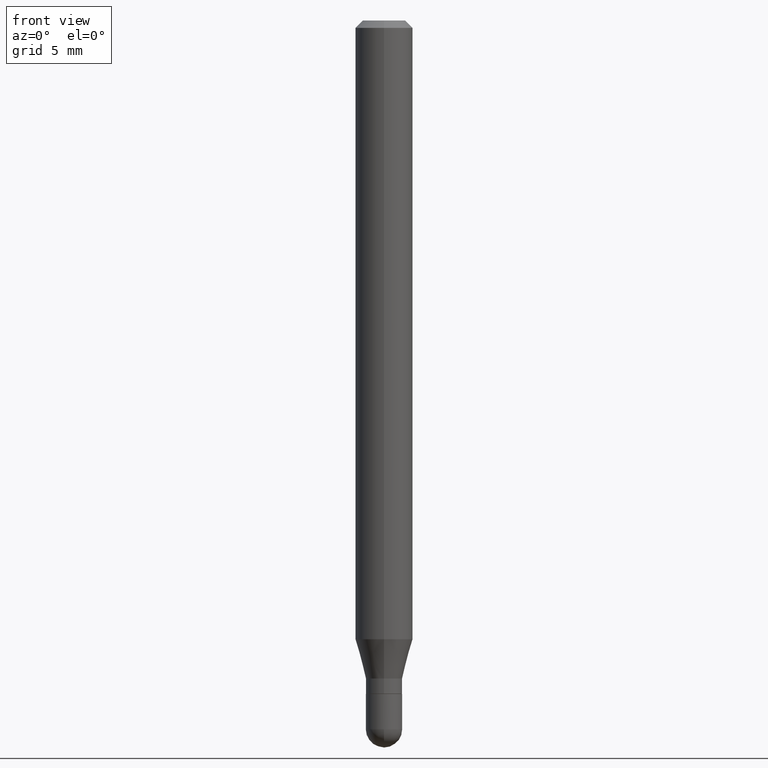
[diagram: clean part render]
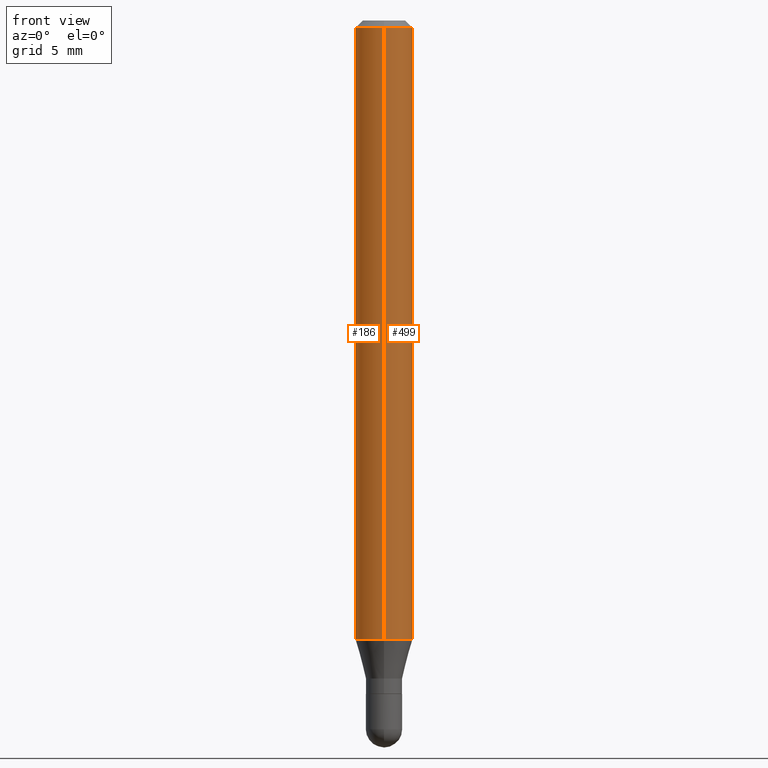
[diagram: same view with one multi-face feature highlighted, each face labeled with its STEP entity id]
A machine part, front view. The highlighted faces form ONE feature: a constant-radius fillet chain: 2 tangent blend faces with common blend radius 1.4999 mm. The faces share edges in the B-rep.
Their STEP definitions:
[1] entity #186 (Cylinder):
#7 = CARTESIAN_POINT ( 'NONE',  ( 4.195754854663704558E-16, 0.05904999999999994975, -0.01500000000000029955 ) ) ;
#18 = DIRECTION ( 'NONE',  ( -6.982962677686265922E-15, -1.000000000000000000, 4.626330217890369336E-15 ) ) ;
#25 = VECTOR ( 'NONE', #443, 39.37007874015748143 ) ;
#37 = CARTESIAN_POINT ( 'NONE',  ( 4.195754854663699134E-16, 0.05904999999999551580, -1.273301100016134058 ) ) ;
#57 = AXIS2_PLACEMENT_3D ( 'NONE', #252, #139, #62 ) ;
#62 = DIRECTION ( 'NONE',  ( -6.982962677686265922E-15, -1.000000000000000000, 3.491556839184075306E-15 ) ) ;
#66 = CARTESIAN_POINT ( 'NONE',  ( -4.123439461173431685E-16, -0.05905000000000448085, -1.273301100016133613 ) ) ;
#84 = ORIENTED_EDGE ( 'NONE', *, *, #428, .T. ) ;
#95 = CARTESIAN_POINT ( 'NONE',  ( 4.195754854663390985E-16, 0.05904999999999999832, -2.061764313538196479E-16 ) ) ;
#116 = CIRCLE ( 'NONE', #163, 0.05904999999999999832 ) ;
#131 = CARTESIAN_POINT ( 'NONE',  ( 3.668124126868297488E-31, -5.237335258776145500E-17, -0.01500000000000009139 ) ) ;
#135 = CARTESIAN_POINT ( 'NONE',  ( -4.123439461173736383E-16, -0.05905000000000005383, -0.01499999999999988495 ) ) ;
#139 = DIRECTION ( 'NONE',  ( -2.445416084578850208E-29, 3.491556839184075306E-15, 1.000000000000000000 ) ) ;
#156 = ORIENTED_EDGE ( 'NONE', *, *, #447, .T. ) ;
#163 = AXIS2_PLACEMENT_3D ( 'NONE', #318, #316, #18 ) ;
#186 = ADVANCED_FACE ( 'NONE', ( #455 ), #209, .T. ) ;
#191 = VERTEX_POINT ( 'NONE', #135 ) ;
#192 = VERTEX_POINT ( 'NONE', #66 ) ;
#207 = EDGE_LOOP ( 'NONE', ( #291, #84, #156, #259 ) ) ;
#208 = EDGE_CURVE ( 'NONE', #323, #191, #244, .T. ) ;
#209 = CYLINDRICAL_SURFACE ( 'NONE', #57, 0.05904999999999999832 ) ;
#243 = AXIS2_PLACEMENT_3D ( 'NONE', #131, #300, #465 ) ;
#244 = CIRCLE ( 'NONE', #243, 0.05904999999999999832 ) ;
#246 = DIRECTION ( 'NONE',  ( -2.445416084578850208E-29, 3.491556839184075306E-15, 1.000000000000000000 ) ) ;
#252 = CARTESIAN_POINT ( 'NONE',  ( 0.000000000000000000, 0.000000000000000000, 0.000000000000000000 ) ) ;
#259 = ORIENTED_EDGE ( 'NONE', *, *, #208, .F. ) ;
#263 = VERTEX_POINT ( 'NONE', #37 ) ;
#273 = LINE ( 'NONE', #95, #338 ) ;
#279 = LINE ( 'NONE', #358, #25 ) ;
#291 = ORIENTED_EDGE ( 'NONE', *, *, #297, .F. ) ;
#297 = EDGE_CURVE ( 'NONE', #263, #323, #273, .T. ) ;
#300 = DIRECTION ( 'NONE',  ( -2.445416084578850208E-29, 3.491556839184075306E-15, 1.000000000000000000 ) ) ;
#316 = DIRECTION ( 'NONE',  ( -2.445416084578850208E-29, 3.491556839184075306E-15, 1.000000000000000000 ) ) ;
#318 = CARTESIAN_POINT ( 'NONE',  ( 3.113750990491396725E-29, -4.445803164101938661E-15, -1.273301100016133836 ) ) ;
#323 = VERTEX_POINT ( 'NONE', #7 ) ;
#338 = VECTOR ( 'NONE', #246, 39.37007874015748143 ) ;
#358 = CARTESIAN_POINT ( 'NONE',  ( -4.123439461173739834E-16, -0.05904999999999999832, 2.061764313538196479E-16 ) ) ;
#428 = EDGE_CURVE ( 'NONE', #263, #192, #116, .T. ) ;
#443 = DIRECTION ( 'NONE',  ( -2.445416084578850208E-29, 3.491556839184075306E-15, 1.000000000000000000 ) ) ;
#447 = EDGE_CURVE ( 'NONE', #192, #191, #279, .T. ) ;
#455 = FACE_OUTER_BOUND ( 'NONE', #207, .T. ) ;
#465 = DIRECTION ( 'NONE',  ( -6.982962677686265922E-15, -1.000000000000000000, 3.505890868245046092E-15 ) ) ;
[2] entity #499 (Cylinder):
#7 = CARTESIAN_POINT ( 'NONE',  ( 4.195754854663704558E-16, 0.05904999999999994975, -0.01500000000000029955 ) ) ;
#25 = VECTOR ( 'NONE', #443, 39.37007874015748143 ) ;
#31 = DIRECTION ( 'NONE',  ( -2.445416084578850208E-29, 3.491556839184075306E-15, 1.000000000000000000 ) ) ;
#37 = CARTESIAN_POINT ( 'NONE',  ( 4.195754854663699134E-16, 0.05904999999999551580, -1.273301100016134058 ) ) ;
#66 = CARTESIAN_POINT ( 'NONE',  ( -4.123439461173431685E-16, -0.05905000000000448085, -1.273301100016133613 ) ) ;
#69 = FACE_OUTER_BOUND ( 'NONE', #189, .T. ) ;
#93 = AXIS2_PLACEMENT_3D ( 'NONE', #479, #445, #384 ) ;
#95 = CARTESIAN_POINT ( 'NONE',  ( 4.195754854663390985E-16, 0.05904999999999999832, -2.061764313538196479E-16 ) ) ;
#135 = CARTESIAN_POINT ( 'NONE',  ( -4.123439461173736383E-16, -0.05905000000000005383, -0.01499999999999988495 ) ) ;
#148 = EDGE_CURVE ( 'NONE', #192, #263, #361, .T. ) ;
#178 = AXIS2_PLACEMENT_3D ( 'NONE', #254, #31, #423 ) ;
#184 = CYLINDRICAL_SURFACE ( 'NONE', #233, 0.05904999999999999832 ) ;
#189 = EDGE_LOOP ( 'NONE', ( #201, #317, #324, #355 ) ) ;
#191 = VERTEX_POINT ( 'NONE', #135 ) ;
#192 = VERTEX_POINT ( 'NONE', #66 ) ;
#201 = ORIENTED_EDGE ( 'NONE', *, *, #148, .T. ) ;
#233 = AXIS2_PLACEMENT_3D ( 'NONE', #341, #509, #429 ) ;
#246 = DIRECTION ( 'NONE',  ( -2.445416084578850208E-29, 3.491556839184075306E-15, 1.000000000000000000 ) ) ;
#254 = CARTESIAN_POINT ( 'NONE',  ( 3.113750990491396725E-29, -4.445803164101938661E-15, -1.273301100016133836 ) ) ;
#260 = EDGE_CURVE ( 'NONE', #191, #323, #401, .T. ) ;
#263 = VERTEX_POINT ( 'NONE', #37 ) ;
#273 = LINE ( 'NONE', #95, #338 ) ;
#279 = LINE ( 'NONE', #358, #25 ) ;
#297 = EDGE_CURVE ( 'NONE', #263, #323, #273, .T. ) ;
#317 = ORIENTED_EDGE ( 'NONE', *, *, #297, .T. ) ;
#323 = VERTEX_POINT ( 'NONE', #7 ) ;
#324 = ORIENTED_EDGE ( 'NONE', *, *, #260, .F. ) ;
#338 = VECTOR ( 'NONE', #246, 39.37007874015748143 ) ;
#341 = CARTESIAN_POINT ( 'NONE',  ( 0.000000000000000000, 0.000000000000000000, 0.000000000000000000 ) ) ;
#355 = ORIENTED_EDGE ( 'NONE', *, *, #447, .F. ) ;
#358 = CARTESIAN_POINT ( 'NONE',  ( -4.123439461173739834E-16, -0.05904999999999999832, 2.061764313538196479E-16 ) ) ;
#361 = CIRCLE ( 'NONE', #178, 0.05904999999999999832 ) ;
#384 = DIRECTION ( 'NONE',  ( -6.982962677686265922E-15, -1.000000000000000000, 3.505890868245046092E-15 ) ) ;
#401 = CIRCLE ( 'NONE', #93, 0.05904999999999999832 ) ;
#423 = DIRECTION ( 'NONE',  ( -6.982962677686265922E-15, -1.000000000000000000, 4.626330217890369336E-15 ) ) ;
#429 = DIRECTION ( 'NONE',  ( -6.982962677686265922E-15, -1.000000000000000000, 3.491556839184075306E-15 ) ) ;
#443 = DIRECTION ( 'NONE',  ( -2.445416084578850208E-29, 3.491556839184075306E-15, 1.000000000000000000 ) ) ;
#445 = DIRECTION ( 'NONE',  ( -2.445416084578850208E-29, 3.491556839184075306E-15, 1.000000000000000000 ) ) ;
#447 = EDGE_CURVE ( 'NONE', #192, #191, #279, .T. ) ;
#479 = CARTESIAN_POINT ( 'NONE',  ( 3.668124126868297488E-31, -5.237335258776145500E-17, -0.01500000000000009139 ) ) ;
#499 = ADVANCED_FACE ( 'NONE', ( #69 ), #184, .T. ) ;
#509 = DIRECTION ( 'NONE',  ( -2.445416084578850208E-29, 3.491556839184075306E-15, 1.000000000000000000 ) ) ;